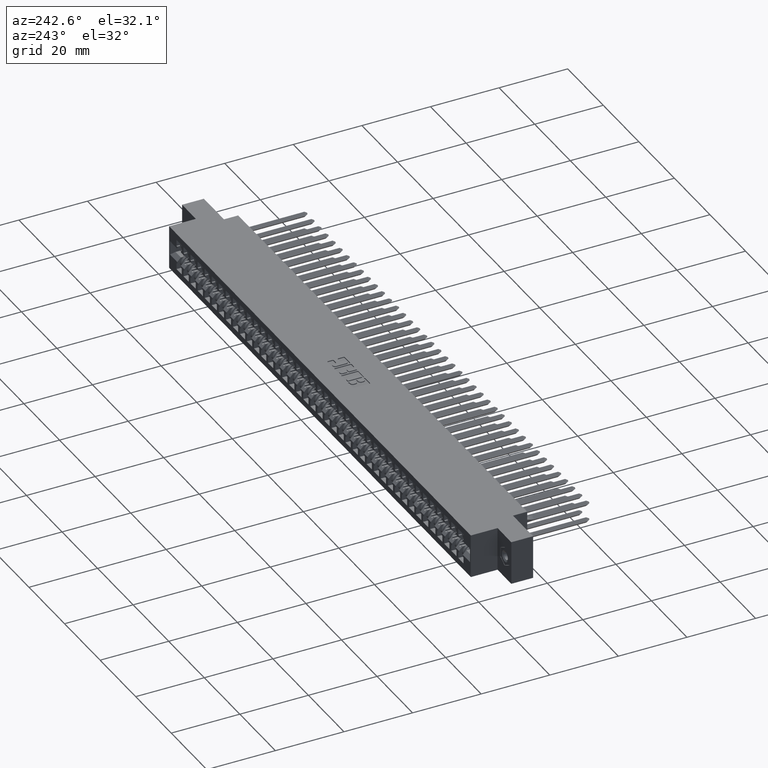
[diagram: clean part render]
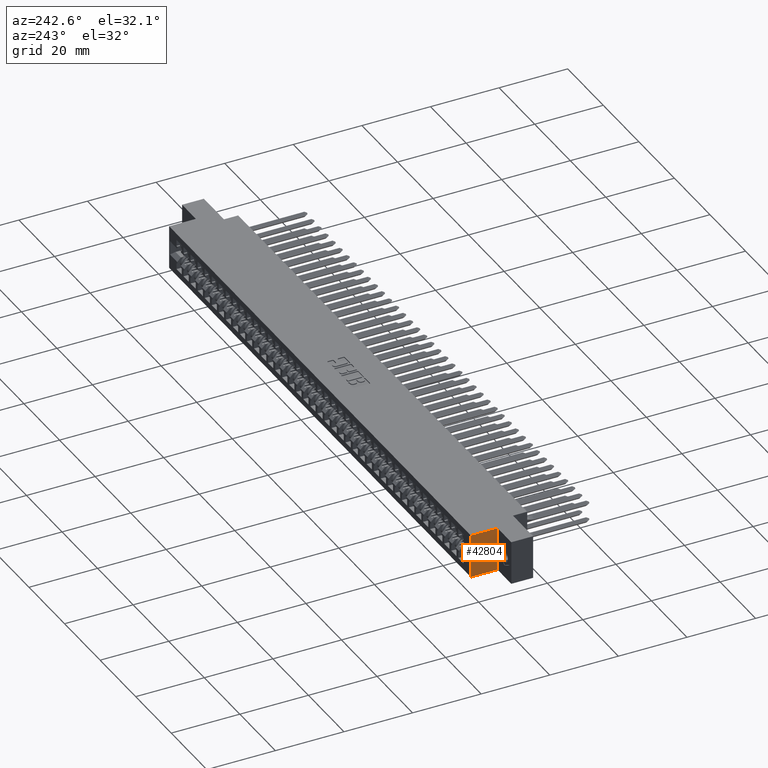
[diagram: same view with one face highlighted and labeled with its STEP entity id]
A machine part, auxiliary view. The second image highlights one B-rep face of the part: STEP entity #42804.
In plain terms, the highlighted planar face has unit normal (1, 0, -0).
Its self-contained STEP definition (entity closure, byte-faithful):
#55 = EDGE_LOOP ( 'NONE', ( #47001, #17592, #2527, #59109 ) ) ;
#2527 = ORIENTED_EDGE ( 'NONE', *, *, #33092, .F. ) ;
#2656 = VECTOR ( 'NONE', #23784, 39.37007874015748100 ) ;
#2964 = CARTESIAN_POINT ( 'NONE',  ( 0.3049999999999999900, 0.4129999999999999200, -0.5000000000000000000 ) ) ;
#3242 = DIRECTION ( 'NONE',  ( -1.365923996832131600E-016, -0.0000000000000000000, -1.000000000000000000 ) ) ;
#6621 = PLANE ( 'NONE',  #15063 ) ;
#7254 = VERTEX_POINT ( 'NONE', #24044 ) ;
#7842 = LINE ( 'NONE', #57706, #20751 ) ;
#12075 = LINE ( 'NONE', #30755, #24297 ) ;
#13151 = CARTESIAN_POINT ( 'NONE',  ( 0.3049999999999999900, 0.4129999999999999200, -0.5000000000000000000 ) ) ;
#13257 = DIRECTION ( 'NONE',  ( 1.000000000000000000, 0.0000000000000000000, -1.365923996832131600E-016 ) ) ;
#15063 = AXIS2_PLACEMENT_3D ( 'NONE', #13151, #13257, #38118 ) ;
#17039 = DIRECTION ( 'NONE',  ( -0.0000000000000000000, 1.000000000000000000, -0.0000000000000000000 ) ) ;
#17592 = ORIENTED_EDGE ( 'NONE', *, *, #29269, .F. ) ;
#18190 = CARTESIAN_POINT ( 'NONE',  ( 0.3050000000000000500, 0.7199999999999999700, 0.0000000000000000000 ) ) ;
#20751 = VECTOR ( 'NONE', #44392, 39.37007874015748100 ) ;
#22787 = CARTESIAN_POINT ( 'NONE',  ( 0.3050000000000000500, 0.4129999999999999200, -0.5000000000000000000 ) ) ;
#23784 = DIRECTION ( 'NONE',  ( -1.365923996832131600E-016, -0.0000000000000000000, -1.000000000000000000 ) ) ;
#24044 = CARTESIAN_POINT ( 'NONE',  ( 0.3050000000000000500, 0.4129999999999999200, 0.0000000000000000000 ) ) ;
#24297 = VECTOR ( 'NONE', #3242, 39.37007874015748100 ) ;
#28566 = LINE ( 'NONE', #42077, #2656 ) ;
#29269 = EDGE_CURVE ( 'NONE', #48439, #30796, #34793, .T. ) ;
#30755 = CARTESIAN_POINT ( 'NONE',  ( 0.3049999999999999900, 0.7199999999999999700, -0.5000000000000000000 ) ) ;
#30796 = VERTEX_POINT ( 'NONE', #48396 ) ;
#33092 = EDGE_CURVE ( 'NONE', #7254, #48439, #28566, .T. ) ;
#34793 = LINE ( 'NONE', #2964, #41254 ) ;
#35846 = VERTEX_POINT ( 'NONE', #18190 ) ;
#38041 = EDGE_CURVE ( 'NONE', #35846, #30796, #12075, .T. ) ;
#38118 = DIRECTION ( 'NONE',  ( -1.365923996832131600E-016, 0.0000000000000000000, -1.000000000000000000 ) ) ;
#41254 = VECTOR ( 'NONE', #17039, 39.37007874015748100 ) ;
#42077 = CARTESIAN_POINT ( 'NONE',  ( 0.3049999999999999900, 0.4129999999999999200, -0.5000000000000000000 ) ) ;
#42804 = ADVANCED_FACE ( 'NONE', ( #46255 ), #6621, .F. ) ;
#44392 = DIRECTION ( 'NONE',  ( -0.0000000000000000000, 1.000000000000000000, -0.0000000000000000000 ) ) ;
#45162 = EDGE_CURVE ( 'NONE', #7254, #35846, #7842, .T. ) ;
#46255 = FACE_OUTER_BOUND ( 'NONE', #55, .T. ) ;
#47001 = ORIENTED_EDGE ( 'NONE', *, *, #38041, .T. ) ;
#48396 = CARTESIAN_POINT ( 'NONE',  ( 0.3049999999999999900, 0.7199999999999999700, -0.5000000000000000000 ) ) ;
#48439 = VERTEX_POINT ( 'NONE', #22787 ) ;
#57706 = CARTESIAN_POINT ( 'NONE',  ( 0.3050000000000000500, 0.4129999999999999200, 0.0000000000000000000 ) ) ;
#59109 = ORIENTED_EDGE ( 'NONE', *, *, #45162, .T. ) ;